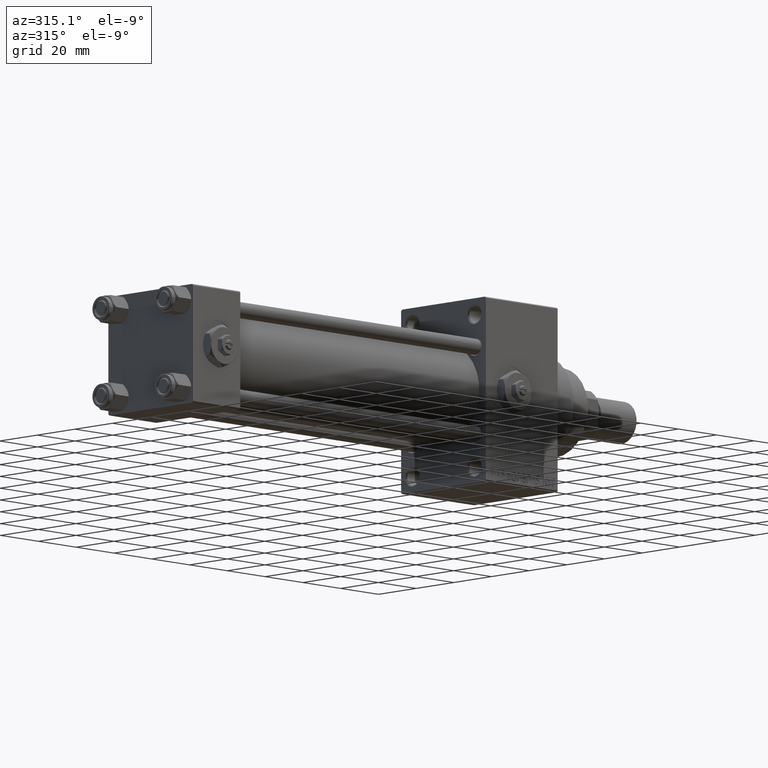
[diagram: clean part render]
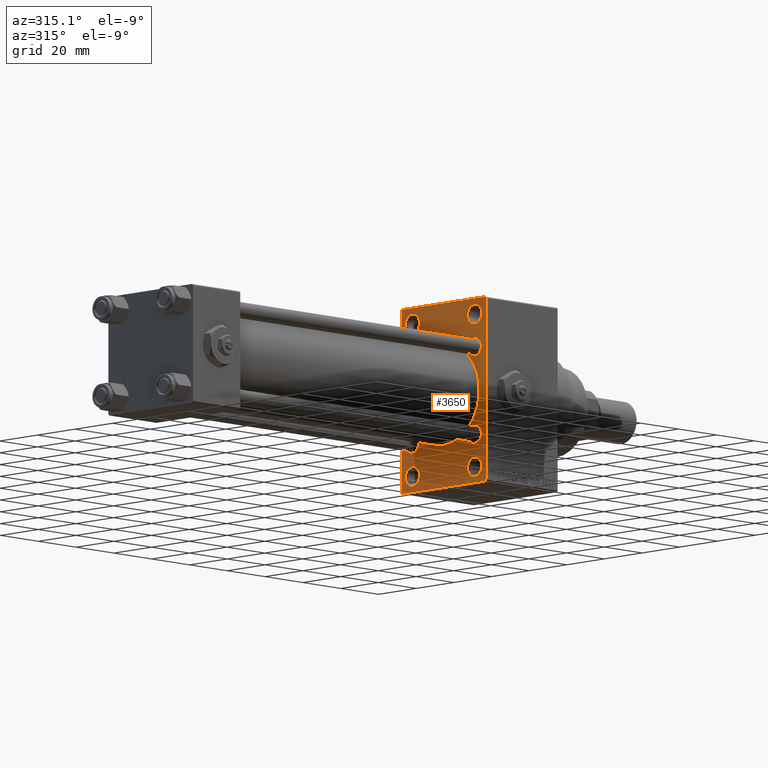
[diagram: same view with one face highlighted and labeled with its STEP entity id]
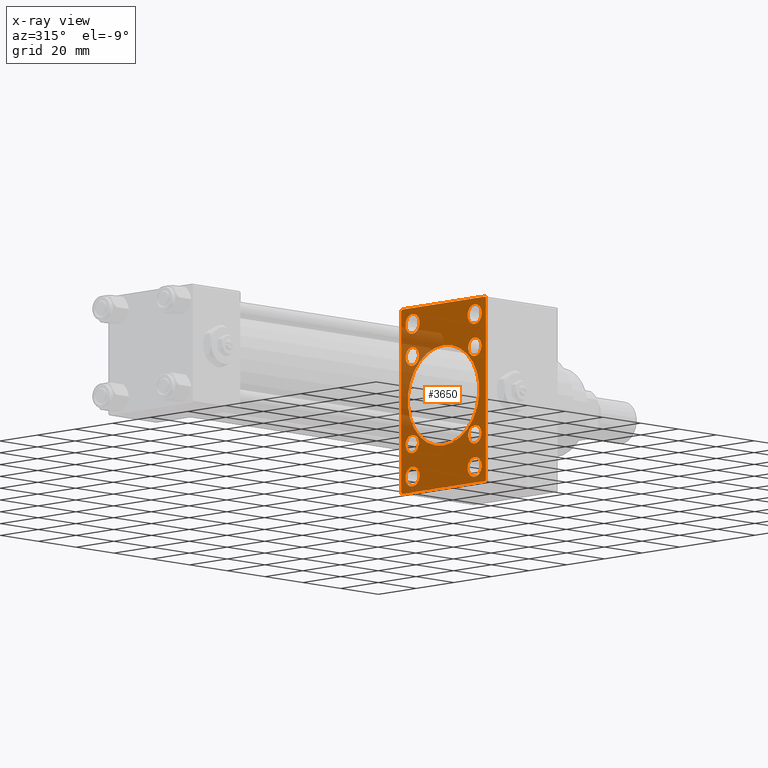
[diagram: x-ray of the same camera — body ghosted, the highlighted face saturated]
A machine part, auxiliary view. The second image highlights one B-rep face of the part: STEP entity #3650.
The next image is the same camera in x-ray: the body ghosted, the highlighted face saturated — about 19% of this face is hidden behind the body in this view.
In plain terms, the highlighted planar face has unit normal (-1, 0, 0).
Its self-contained STEP definition (entity closure, byte-faithful):
#53 = EDGE_CURVE ( 'NONE', #25129, #40281, #4721, .T. ) ;
#260 = ORIENTED_EDGE ( 'NONE', *, *, #14243, .T. ) ;
#519 = VECTOR ( 'NONE', #19745, 1000.000000000000000 ) ;
#945 = VECTOR ( 'NONE', #45171, 1000.000000000000114 ) ;
#997 = EDGE_CURVE ( 'NONE', #33219, #24001, #3749, .T. ) ;
#1423 = EDGE_CURVE ( 'NONE', #8832, #30771, #6981, .T. ) ;
#1560 = EDGE_CURVE ( 'NONE', #40369, #44326, #42941, .T. ) ;
#1743 = CARTESIAN_POINT ( 'NONE',  ( 155.0000000000000000, 16.59999999999999787, -20.10000000000000853 ) ) ;
#1753 = ORIENTED_EDGE ( 'NONE', *, *, #26568, .T. ) ;
#1799 = CIRCLE ( 'NONE', #36204, 3.749999999999920064 ) ;
#1983 = CIRCLE ( 'NONE', #29973, 3.749999999999916511 ) ;
#2006 = CARTESIAN_POINT ( 'NONE',  ( 155.0000000000000000, -16.59999999999999076, -16.60000000000000853 ) ) ;
#2139 = DIRECTION ( 'NONE',  ( 0.000000000000000000, 0.7071067811865474617, -0.7071067811865474617 ) ) ;
#2156 = AXIS2_PLACEMENT_3D ( 'NONE', #4348, #7878, #19627 ) ;
#2262 = DIRECTION ( 'NONE',  ( 0.000000000000000000, 0.000000000000000000, 1.000000000000000000 ) ) ;
#2265 = CIRCLE ( 'NONE', #31022, 19.00000000000000000 ) ;
#2368 = VECTOR ( 'NONE', #29123, 1000.000000000000114 ) ;
#2679 = DIRECTION ( 'NONE',  ( 0.000000000000000000, 0.000000000000000000, 1.000000000000000000 ) ) ;
#2888 = EDGE_CURVE ( 'NONE', #24690, #20618, #2265, .T. ) ;
#2900 = CIRCLE ( 'NONE', #48508, 3.749999999999923617 ) ;
#3650 = ADVANCED_FACE ( 'NONE', ( #45231, #49244, #7396, #26917, #26197, #14412, #11408, #6910, #34188, #14893 ), #33717, .T. ) ;
#3749 = CIRCLE ( 'NONE', #6163, 3.749999999999923617 ) ;
#3829 = DIRECTION ( 'NONE',  ( 1.000000000000000000, 0.000000000000000000, 0.000000000000000000 ) ) ;
#4026 = CARTESIAN_POINT ( 'NONE',  ( 155.0000000000000000, 22.49999999999999645, -34.50000000000000000 ) ) ;
#4066 = EDGE_CURVE ( 'NONE', #39860, #46238, #5470, .T. ) ;
#4074 = VECTOR ( 'NONE', #21781, 1000.000000000000000 ) ;
#4141 = DIRECTION ( 'NONE',  ( 1.000000000000000000, 0.000000000000000000, 0.000000000000000000 ) ) ;
#4288 = DIRECTION ( 'NONE',  ( 0.000000000000000000, 0.000000000000000000, -1.000000000000000000 ) ) ;
#4334 = ORIENTED_EDGE ( 'NONE', *, *, #15904, .T. ) ;
#4348 = CARTESIAN_POINT ( 'NONE',  ( 155.0000000000000000, 16.59999999999999787, -16.60000000000000497 ) ) ;
#4721 = LINE ( 'NONE', #31021, #519 ) ;
#5020 = CIRCLE ( 'NONE', #16192, 3.500000000000003109 ) ;
#5049 = DIRECTION ( 'NONE',  ( 0.000000000000000000, 0.000000000000000000, 1.000000000000000000 ) ) ;
#5470 = CIRCLE ( 'NONE', #26288, 3.749999999999923617 ) ;
#5513 = DIRECTION ( 'NONE',  ( 0.000000000000000000, 0.000000000000000000, 1.000000000000000000 ) ) ;
#5563 = EDGE_LOOP ( 'NONE', ( #1753, #24803 ) ) ;
#5726 = CIRCLE ( 'NONE', #48149, 3.500000000000006661 ) ;
#5785 = LINE ( 'NONE', #43609, #13843 ) ;
#5805 = AXIS2_PLACEMENT_3D ( 'NONE', #31816, #24304, #5513 ) ;
#6163 = AXIS2_PLACEMENT_3D ( 'NONE', #44814, #43810, #21025 ) ;
#6488 = CARTESIAN_POINT ( 'NONE',  ( 155.0000000000000000, -16.59999999999999076, 13.10000000000000142 ) ) ;
#6605 = VERTEX_POINT ( 'NONE', #47535 ) ;
#6769 = CARTESIAN_POINT ( 'NONE',  ( 155.0000000000000000, -16.50000000000000000, 25.25000000000009237 ) ) ;
#6910 = FACE_BOUND ( 'NONE', #32332, .T. ) ;
#6952 = EDGE_CURVE ( 'NONE', #24001, #33219, #31970, .T. ) ;
#6981 = CIRCLE ( 'NONE', #2156, 3.500000000000006661 ) ;
#7033 = EDGE_CURVE ( 'NONE', #30771, #8832, #23980, .T. ) ;
#7396 = FACE_BOUND ( 'NONE', #27438, .T. ) ;
#7557 = DIRECTION ( 'NONE',  ( 0.000000000000000000, 0.000000000000000000, 1.000000000000000000 ) ) ;
#7699 = VERTEX_POINT ( 'NONE', #27669 ) ;
#7878 = DIRECTION ( 'NONE',  ( 1.000000000000000000, 0.000000000000000000, 0.000000000000000000 ) ) ;
#7902 = CARTESIAN_POINT ( 'NONE',  ( 155.0000000000000000, -16.50000000000000000, 29.00000000000000711 ) ) ;
#7929 = CARTESIAN_POINT ( 'NONE',  ( 155.0000000000000000, -16.59999999999999076, -20.10000000000001208 ) ) ;
#8451 = VERTEX_POINT ( 'NONE', #8698 ) ;
#8698 = CARTESIAN_POINT ( 'NONE',  ( 155.0000000000000000, 16.50000000000000000, 32.74999999999991473 ) ) ;
#8832 = VERTEX_POINT ( 'NONE', #21170 ) ;
#8895 = DIRECTION ( 'NONE',  ( -0.000000000000000000, 0.7071067811865474617, 0.7071067811865474617 ) ) ;
#9150 = ORIENTED_EDGE ( 'NONE', *, *, #10003, .T. ) ;
#9534 = EDGE_CURVE ( 'NONE', #28425, #41640, #24744, .T. ) ;
#9750 = ORIENTED_EDGE ( 'NONE', *, *, #1560, .T. ) ;
#10003 = EDGE_CURVE ( 'NONE', #40281, #44007, #32638, .T. ) ;
#10299 = CIRCLE ( 'NONE', #37504, 3.749999999999920064 ) ;
#10385 = AXIS2_PLACEMENT_3D ( 'NONE', #45922, #3829, #37917 ) ;
#10853 = ORIENTED_EDGE ( 'NONE', *, *, #12977, .T. ) ;
#10907 = DIRECTION ( 'NONE',  ( 1.000000000000000000, 0.000000000000000000, 0.000000000000000000 ) ) ;
#11077 = CARTESIAN_POINT ( 'NONE',  ( 155.0000000000000000, 16.50000000000000000, -32.74999999999991473 ) ) ;
#11318 = CIRCLE ( 'NONE', #38485, 3.500000000000006661 ) ;
#11408 = FACE_BOUND ( 'NONE', #18800, .T. ) ;
#11657 = VERTEX_POINT ( 'NONE', #42827 ) ;
#11683 = CARTESIAN_POINT ( 'NONE',  ( 155.0000000000000000, 16.59999999999999787, 13.09999999999999609 ) ) ;
#11800 = CARTESIAN_POINT ( 'NONE',  ( 155.0000000000000000, -16.59999999999999076, -16.60000000000000853 ) ) ;
#12016 = ORIENTED_EDGE ( 'NONE', *, *, #41126, .F. ) ;
#12387 = DIRECTION ( 'NONE',  ( 0.000000000000000000, 0.000000000000000000, 1.000000000000000000 ) ) ;
#12550 = CARTESIAN_POINT ( 'NONE',  ( 155.0000000000000000, 16.50000000000000000, -28.99999999999999289 ) ) ;
#12557 = CARTESIAN_POINT ( 'NONE',  ( 155.0000000000000000, -21.99999999999998934, 35.00000000000000000 ) ) ;
#12933 = EDGE_CURVE ( 'NONE', #21235, #43516, #40863, .T. ) ;
#12977 = EDGE_CURVE ( 'NONE', #11657, #36705, #35447, .T. ) ;
#13284 = DIRECTION ( 'NONE',  ( 0.000000000000000000, -1.000000000000000000, 0.000000000000000000 ) ) ;
#13843 = VECTOR ( 'NONE', #13284, 1000.000000000000000 ) ;
#13934 = CARTESIAN_POINT ( 'NONE',  ( 155.0000000000000000, 16.50000000000000000, 29.00000000000000355 ) ) ;
#14227 = CARTESIAN_POINT ( 'NONE',  ( 155.0000000000000000, -16.59999999999999076, 16.60000000000000853 ) ) ;
#14243 = EDGE_CURVE ( 'NONE', #41640, #28425, #5726, .T. ) ;
#14412 = FACE_BOUND ( 'NONE', #46174, .T. ) ;
#14893 = FACE_OUTER_BOUND ( 'NONE', #20743, .T. ) ;
#14934 = AXIS2_PLACEMENT_3D ( 'NONE', #36677, #40199, #40691 ) ;
#15315 = ORIENTED_EDGE ( 'NONE', *, *, #36007, .T. ) ;
#15904 = EDGE_CURVE ( 'NONE', #46543, #48040, #18365, .T. ) ;
#16019 = CARTESIAN_POINT ( 'NONE',  ( 155.0000000000000000, 21.99999999999999645, 35.00000000000000000 ) ) ;
#16192 = AXIS2_PLACEMENT_3D ( 'NONE', #14227, #39810, #29521 ) ;
#17120 = EDGE_CURVE ( 'NONE', #44326, #40369, #5020, .T. ) ;
#17211 = EDGE_LOOP ( 'NONE', ( #40186, #45366 ) ) ;
#17397 = DIRECTION ( 'NONE',  ( 1.000000000000000000, 0.000000000000000000, 0.000000000000000000 ) ) ;
#18365 = LINE ( 'NONE', #33654, #945 ) ;
#18439 = VECTOR ( 'NONE', #2139, 1000.000000000000114 ) ;
#18448 = AXIS2_PLACEMENT_3D ( 'NONE', #34946, #4141, #30699 ) ;
#18666 = CARTESIAN_POINT ( 'NONE',  ( 155.0000000000000000, 0.000000000000000000, 0.000000000000000000 ) ) ;
#18800 = EDGE_LOOP ( 'NONE', ( #28006, #23128 ) ) ;
#19242 = ORIENTED_EDGE ( 'NONE', *, *, #34437, .T. ) ;
#19549 = CARTESIAN_POINT ( 'NONE',  ( 155.0000000000000000, -16.50000000000000000, -25.25000000000007105 ) ) ;
#19627 = DIRECTION ( 'NONE',  ( 0.000000000000000000, 0.000000000000000000, 1.000000000000000000 ) ) ;
#19745 = DIRECTION ( 'NONE',  ( 0.000000000000000000, 0.000000000000000000, -1.000000000000000000 ) ) ;
#20068 = CARTESIAN_POINT ( 'NONE',  ( 155.0000000000000000, 22.49999999999999645, 34.50000000000000000 ) ) ;
#20618 = VERTEX_POINT ( 'NONE', #35151 ) ;
#20719 = CARTESIAN_POINT ( 'NONE',  ( 155.0000000000000000, -16.59999999999999076, -13.10000000000000142 ) ) ;
#20743 = EDGE_LOOP ( 'NONE', ( #32281, #4334, #31274, #10853, #12016, #39218, #21497, #9150 ) ) ;
#21025 = DIRECTION ( 'NONE',  ( 0.000000000000000000, 0.000000000000000000, 1.000000000000000000 ) ) ;
#21170 = CARTESIAN_POINT ( 'NONE',  ( 155.0000000000000000, 16.59999999999999787, -13.09999999999999787 ) ) ;
#21235 = VERTEX_POINT ( 'NONE', #24014 ) ;
#21497 = ORIENTED_EDGE ( 'NONE', *, *, #53, .T. ) ;
#21781 = DIRECTION ( 'NONE',  ( 0.000000000000000000, -1.000000000000000000, 0.000000000000000000 ) ) ;
#21918 = ORIENTED_EDGE ( 'NONE', *, *, #4066, .T. ) ;
#21941 = DIRECTION ( 'NONE',  ( 0.000000000000000000, 0.000000000000000000, -1.000000000000000000 ) ) ;
#22264 = CARTESIAN_POINT ( 'NONE',  ( 155.0000000000000000, 16.59999999999999787, 16.60000000000000497 ) ) ;
#22432 = CARTESIAN_POINT ( 'NONE',  ( 155.0000000000000000, -2.602085213965210642E-15, 0.000000000000000000 ) ) ;
#23128 = ORIENTED_EDGE ( 'NONE', *, *, #7033, .T. ) ;
#23212 = AXIS2_PLACEMENT_3D ( 'NONE', #30126, #38383, #4288 ) ;
#23866 = ORIENTED_EDGE ( 'NONE', *, *, #2888, .T. ) ;
#23980 = CIRCLE ( 'NONE', #10385, 3.500000000000006661 ) ;
#24001 = VERTEX_POINT ( 'NONE', #19549 ) ;
#24014 = CARTESIAN_POINT ( 'NONE',  ( 155.0000000000000000, 16.59999999999999787, 20.10000000000001208 ) ) ;
#24304 = DIRECTION ( 'NONE',  ( 1.000000000000000000, 0.000000000000000000, 0.000000000000000000 ) ) ;
#24465 = DIRECTION ( 'NONE',  ( 1.000000000000000000, 0.000000000000000000, 0.000000000000000000 ) ) ;
#24690 = VERTEX_POINT ( 'NONE', #31146 ) ;
#24744 = CIRCLE ( 'NONE', #33550, 3.500000000000006661 ) ;
#24803 = ORIENTED_EDGE ( 'NONE', *, *, #39815, .T. ) ;
#25026 = CARTESIAN_POINT ( 'NONE',  ( 155.0000000000000000, -22.50000000000000355, -34.50000000000000000 ) ) ;
#25129 = VERTEX_POINT ( 'NONE', #20068 ) ;
#26197 = FACE_BOUND ( 'NONE', #33826, .T. ) ;
#26288 = AXIS2_PLACEMENT_3D ( 'NONE', #12550, #39373, #5049 ) ;
#26568 = EDGE_CURVE ( 'NONE', #8451, #6605, #10299, .T. ) ;
#26900 = CARTESIAN_POINT ( 'NONE',  ( 155.0000000000000000, 16.50000000000000000, -28.99999999999999289 ) ) ;
#26917 = FACE_BOUND ( 'NONE', #5563, .T. ) ;
#27078 = DIRECTION ( 'NONE',  ( 1.000000000000000000, 0.000000000000000000, 0.000000000000000000 ) ) ;
#27438 = EDGE_LOOP ( 'NONE', ( #21918, #33314 ) ) ;
#27669 = CARTESIAN_POINT ( 'NONE',  ( 155.0000000000000000, -16.50000000000000000, 32.74999999999992184 ) ) ;
#27883 = DIRECTION ( 'NONE',  ( 0.000000000000000000, 0.000000000000000000, 1.000000000000000000 ) ) ;
#28006 = ORIENTED_EDGE ( 'NONE', *, *, #1423, .T. ) ;
#28373 = CARTESIAN_POINT ( 'NONE',  ( 155.0000000000000000, 28.49999999999999645, -28.49999999999999645 ) ) ;
#28425 = VERTEX_POINT ( 'NONE', #20719 ) ;
#29123 = DIRECTION ( 'NONE',  ( -0.000000000000000000, -0.7071067811865474617, -0.7071067811865474617 ) ) ;
#29287 = CARTESIAN_POINT ( 'NONE',  ( 155.0000000000000000, 22.49999999999999645, -35.00000000000000000 ) ) ;
#29493 = ORIENTED_EDGE ( 'NONE', *, *, #12933, .T. ) ;
#29521 = DIRECTION ( 'NONE',  ( 0.000000000000000000, 0.000000000000000000, 1.000000000000000000 ) ) ;
#29664 = DIRECTION ( 'NONE',  ( 0.000000000000000000, 0.000000000000000000, 1.000000000000000000 ) ) ;
#29911 = CARTESIAN_POINT ( 'NONE',  ( 155.0000000000000000, -16.50000000000000000, -28.99999999999999289 ) ) ;
#29973 = AXIS2_PLACEMENT_3D ( 'NONE', #7902, #34700, #12387 ) ;
#30126 = CARTESIAN_POINT ( 'NONE',  ( 155.0000000000000000, -2.602085213965210642E-15, 0.000000000000000000 ) ) ;
#30188 = CARTESIAN_POINT ( 'NONE',  ( 155.0000000000000000, -16.50000000000000000, -32.74999999999991473 ) ) ;
#30398 = DIRECTION ( 'NONE',  ( 1.000000000000000000, 0.000000000000000000, 0.000000000000000000 ) ) ;
#30699 = DIRECTION ( 'NONE',  ( 0.000000000000000000, 0.000000000000000000, 1.000000000000000000 ) ) ;
#30771 = VERTEX_POINT ( 'NONE', #1743 ) ;
#31021 = CARTESIAN_POINT ( 'NONE',  ( 155.0000000000000000, 22.49999999999999645, 35.00000000000000000 ) ) ;
#31022 = AXIS2_PLACEMENT_3D ( 'NONE', #22432, #10907, #21941 ) ;
#31143 = DIRECTION ( 'NONE',  ( 1.000000000000000000, 0.000000000000000000, 0.000000000000000000 ) ) ;
#31146 = CARTESIAN_POINT ( 'NONE',  ( 155.0000000000000000, -2.752562955852396712E-16, -19.00000000000000000 ) ) ;
#31183 = EDGE_CURVE ( 'NONE', #42058, #25129, #47993, .T. ) ;
#31274 = ORIENTED_EDGE ( 'NONE', *, *, #44680, .F. ) ;
#31690 = DIRECTION ( 'NONE',  ( 0.000000000000000000, 0.000000000000000000, 1.000000000000000000 ) ) ;
#31816 = CARTESIAN_POINT ( 'NONE',  ( 155.0000000000000000, -16.50000000000000000, 29.00000000000000711 ) ) ;
#31913 = CARTESIAN_POINT ( 'NONE',  ( 155.0000000000000000, -22.50000000000000355, 35.00000000000000000 ) ) ;
#31970 = CIRCLE ( 'NONE', #48797, 3.749999999999923617 ) ;
#32281 = ORIENTED_EDGE ( 'NONE', *, *, #35875, .T. ) ;
#32332 = EDGE_LOOP ( 'NONE', ( #43160, #260 ) ) ;
#32638 = LINE ( 'NONE', #28373, #2368 ) ;
#32841 = CARTESIAN_POINT ( 'NONE',  ( 155.0000000000000000, -21.99999999999998934, -35.00000000000000000 ) ) ;
#33034 = CIRCLE ( 'NONE', #5805, 3.749999999999916511 ) ;
#33219 = VERTEX_POINT ( 'NONE', #30188 ) ;
#33314 = ORIENTED_EDGE ( 'NONE', *, *, #46827, .T. ) ;
#33481 = AXIS2_PLACEMENT_3D ( 'NONE', #18666, #48759, #45723 ) ;
#33550 = AXIS2_PLACEMENT_3D ( 'NONE', #2006, #47607, #2262 ) ;
#33654 = CARTESIAN_POINT ( 'NONE',  ( 155.0000000000000000, -28.49999999999999645, -28.49999999999999645 ) ) ;
#33717 = PLANE ( 'NONE',  #33481 ) ;
#33826 = EDGE_LOOP ( 'NONE', ( #9750, #45089 ) ) ;
#34188 = FACE_BOUND ( 'NONE', #37250, .T. ) ;
#34437 = EDGE_CURVE ( 'NONE', #20618, #24690, #48060, .T. ) ;
#34700 = DIRECTION ( 'NONE',  ( 1.000000000000000000, 0.000000000000000000, 0.000000000000000000 ) ) ;
#34913 = DIRECTION ( 'NONE',  ( 0.000000000000000000, 0.000000000000000000, -1.000000000000000000 ) ) ;
#34946 = CARTESIAN_POINT ( 'NONE',  ( 155.0000000000000000, 16.59999999999999787, 16.60000000000000497 ) ) ;
#35151 = CARTESIAN_POINT ( 'NONE',  ( 155.0000000000000000, -2.602085213965210642E-15, 19.00000000000000000 ) ) ;
#35166 = LINE ( 'NONE', #31913, #45986 ) ;
#35447 = LINE ( 'NONE', #35951, #46446 ) ;
#35697 = ORIENTED_EDGE ( 'NONE', *, *, #6952, .T. ) ;
#35875 = EDGE_CURVE ( 'NONE', #44007, #46543, #37300, .T. ) ;
#35951 = CARTESIAN_POINT ( 'NONE',  ( 155.0000000000000000, -28.49999999999999645, 28.49999999999999645 ) ) ;
#36007 = EDGE_CURVE ( 'NONE', #43516, #21235, #11318, .T. ) ;
#36204 = AXIS2_PLACEMENT_3D ( 'NONE', #36211, #17397, #31690 ) ;
#36211 = CARTESIAN_POINT ( 'NONE',  ( 155.0000000000000000, 16.50000000000000000, 29.00000000000000355 ) ) ;
#36677 = CARTESIAN_POINT ( 'NONE',  ( 155.0000000000000000, -16.59999999999999076, 16.60000000000000853 ) ) ;
#36705 = VERTEX_POINT ( 'NONE', #12557 ) ;
#37199 = EDGE_LOOP ( 'NONE', ( #35697, #37849 ) ) ;
#37250 = EDGE_LOOP ( 'NONE', ( #19242, #23866 ) ) ;
#37300 = LINE ( 'NONE', #29287, #4074 ) ;
#37504 = AXIS2_PLACEMENT_3D ( 'NONE', #13934, #24465, #2679 ) ;
#37849 = ORIENTED_EDGE ( 'NONE', *, *, #997, .T. ) ;
#37917 = DIRECTION ( 'NONE',  ( 0.000000000000000000, 0.000000000000000000, 1.000000000000000000 ) ) ;
#38383 = DIRECTION ( 'NONE',  ( 1.000000000000000000, 0.000000000000000000, 0.000000000000000000 ) ) ;
#38485 = AXIS2_PLACEMENT_3D ( 'NONE', #22264, #41799, #49083 ) ;
#38898 = EDGE_CURVE ( 'NONE', #43098, #7699, #33034, .T. ) ;
#39218 = ORIENTED_EDGE ( 'NONE', *, *, #31183, .T. ) ;
#39373 = DIRECTION ( 'NONE',  ( 1.000000000000000000, 0.000000000000000000, 0.000000000000000000 ) ) ;
#39810 = DIRECTION ( 'NONE',  ( 1.000000000000000000, 0.000000000000000000, 0.000000000000000000 ) ) ;
#39815 = EDGE_CURVE ( 'NONE', #6605, #8451, #1799, .T. ) ;
#39860 = VERTEX_POINT ( 'NONE', #40970 ) ;
#40186 = ORIENTED_EDGE ( 'NONE', *, *, #44959, .T. ) ;
#40199 = DIRECTION ( 'NONE',  ( 1.000000000000000000, 0.000000000000000000, 0.000000000000000000 ) ) ;
#40281 = VERTEX_POINT ( 'NONE', #4026 ) ;
#40369 = VERTEX_POINT ( 'NONE', #42843 ) ;
#40691 = DIRECTION ( 'NONE',  ( 0.000000000000000000, 0.000000000000000000, 1.000000000000000000 ) ) ;
#40863 = CIRCLE ( 'NONE', #18448, 3.500000000000006661 ) ;
#40970 = CARTESIAN_POINT ( 'NONE',  ( 155.0000000000000000, 16.50000000000000000, -25.25000000000007105 ) ) ;
#41126 = EDGE_CURVE ( 'NONE', #42058, #36705, #5785, .T. ) ;
#41640 = VERTEX_POINT ( 'NONE', #7929 ) ;
#41799 = DIRECTION ( 'NONE',  ( 1.000000000000000000, 0.000000000000000000, 0.000000000000000000 ) ) ;
#42058 = VERTEX_POINT ( 'NONE', #16019 ) ;
#42827 = CARTESIAN_POINT ( 'NONE',  ( 155.0000000000000000, -22.50000000000000355, 34.50000000000000000 ) ) ;
#42843 = CARTESIAN_POINT ( 'NONE',  ( 155.0000000000000000, -16.59999999999999076, 20.10000000000001208 ) ) ;
#42941 = CIRCLE ( 'NONE', #14934, 3.500000000000003109 ) ;
#43098 = VERTEX_POINT ( 'NONE', #6769 ) ;
#43160 = ORIENTED_EDGE ( 'NONE', *, *, #9534, .T. ) ;
#43516 = VERTEX_POINT ( 'NONE', #11683 ) ;
#43609 = CARTESIAN_POINT ( 'NONE',  ( 155.0000000000000000, 22.49999999999999645, 35.00000000000000000 ) ) ;
#43810 = DIRECTION ( 'NONE',  ( 1.000000000000000000, 0.000000000000000000, 0.000000000000000000 ) ) ;
#43980 = CARTESIAN_POINT ( 'NONE',  ( 155.0000000000000000, 28.49999999999999645, 28.49999999999999645 ) ) ;
#44007 = VERTEX_POINT ( 'NONE', #45654 ) ;
#44326 = VERTEX_POINT ( 'NONE', #6488 ) ;
#44680 = EDGE_CURVE ( 'NONE', #11657, #48040, #35166, .T. ) ;
#44814 = CARTESIAN_POINT ( 'NONE',  ( 155.0000000000000000, -16.50000000000000000, -28.99999999999999289 ) ) ;
#44959 = EDGE_CURVE ( 'NONE', #7699, #43098, #1983, .T. ) ;
#45089 = ORIENTED_EDGE ( 'NONE', *, *, #17120, .T. ) ;
#45171 = DIRECTION ( 'NONE',  ( 0.000000000000000000, -0.7071067811865474617, 0.7071067811865474617 ) ) ;
#45231 = FACE_BOUND ( 'NONE', #17211, .T. ) ;
#45366 = ORIENTED_EDGE ( 'NONE', *, *, #38898, .T. ) ;
#45654 = CARTESIAN_POINT ( 'NONE',  ( 155.0000000000000000, 21.99999999999999645, -35.00000000000000000 ) ) ;
#45723 = DIRECTION ( 'NONE',  ( -0.000000000000000000, 0.000000000000000000, 1.000000000000000000 ) ) ;
#45922 = CARTESIAN_POINT ( 'NONE',  ( 155.0000000000000000, 16.59999999999999787, -16.60000000000000497 ) ) ;
#45986 = VECTOR ( 'NONE', #34913, 1000.000000000000000 ) ;
#46174 = EDGE_LOOP ( 'NONE', ( #29493, #15315 ) ) ;
#46238 = VERTEX_POINT ( 'NONE', #11077 ) ;
#46446 = VECTOR ( 'NONE', #8895, 1000.000000000000114 ) ;
#46543 = VERTEX_POINT ( 'NONE', #32841 ) ;
#46827 = EDGE_CURVE ( 'NONE', #46238, #39860, #2900, .T. ) ;
#47535 = CARTESIAN_POINT ( 'NONE',  ( 155.0000000000000000, 16.50000000000000000, 25.25000000000008882 ) ) ;
#47607 = DIRECTION ( 'NONE',  ( 1.000000000000000000, 0.000000000000000000, 0.000000000000000000 ) ) ;
#47993 = LINE ( 'NONE', #43980, #18439 ) ;
#48040 = VERTEX_POINT ( 'NONE', #25026 ) ;
#48060 = CIRCLE ( 'NONE', #23212, 19.00000000000000000 ) ;
#48149 = AXIS2_PLACEMENT_3D ( 'NONE', #11800, #27078, #7557 ) ;
#48508 = AXIS2_PLACEMENT_3D ( 'NONE', #26900, #31143, #27883 ) ;
#48759 = DIRECTION ( 'NONE',  ( -1.000000000000000000, 0.000000000000000000, -0.000000000000000000 ) ) ;
#48797 = AXIS2_PLACEMENT_3D ( 'NONE', #29911, #30398, #29664 ) ;
#49083 = DIRECTION ( 'NONE',  ( 0.000000000000000000, 0.000000000000000000, 1.000000000000000000 ) ) ;
#49244 = FACE_BOUND ( 'NONE', #37199, .T. ) ;